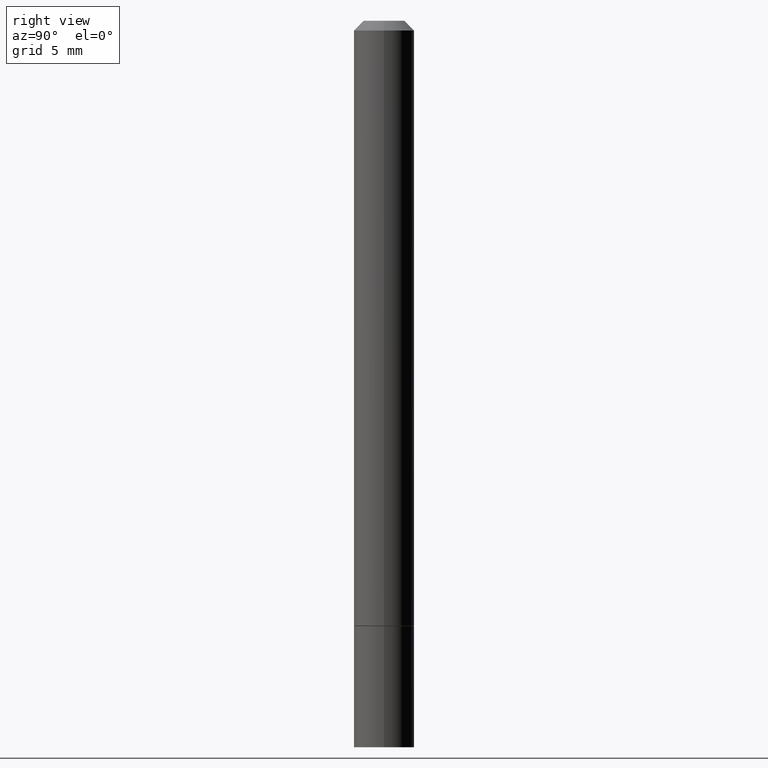
[diagram: clean part render]
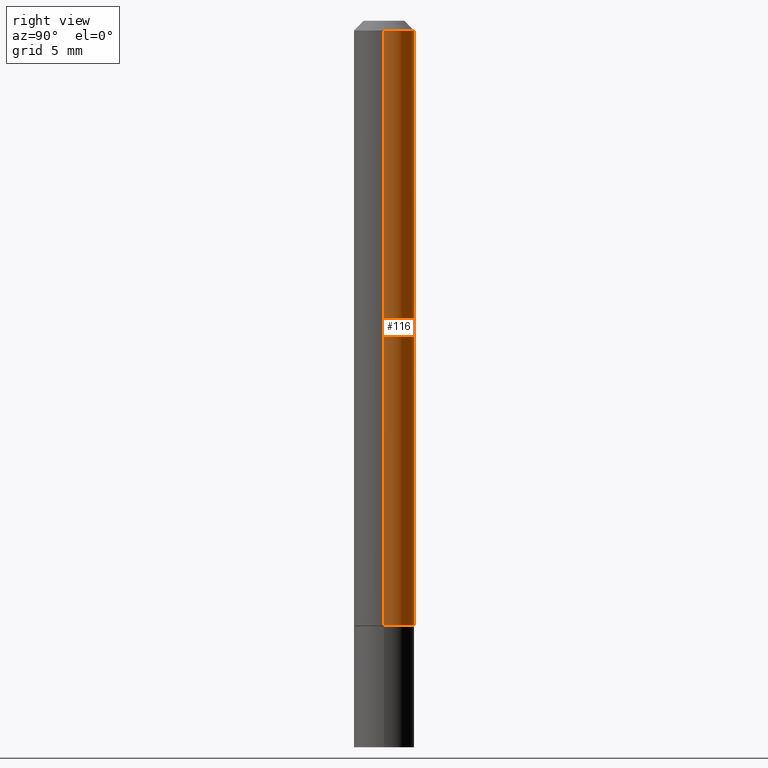
[diagram: same view with one face highlighted and labeled with its STEP entity id]
A machine part, right view. The second image highlights one B-rep face of the part: STEP entity #116.
In plain terms, the highlighted cylindrical surface (edge-blend (fillet) strip) has radius 1.5875 mm, axis along (-0, 0, 1).
Its self-contained STEP definition (entity closure, byte-faithful):
#11 = DIRECTION ( 'NONE',  ( 1.000000000000000000, -6.982962677686267499E-15, 4.876176775795935793E-29 ) ) ;
#30 = CARTESIAN_POINT ( 'NONE',  ( 0.000000000000000000, 0.000000000000000000, 0.000000000000000000 ) ) ;
#31 = EDGE_LOOP ( 'NONE', ( #42, #93, #188, #163 ) ) ;
#32 = CYLINDRICAL_SURFACE ( 'NONE', #211, 0.06250000000000001388 ) ;
#33 = LINE ( 'NONE', #288, #115 ) ;
#40 = DIRECTION ( 'NONE',  ( 1.000000000000000000, -6.982962677686261189E-15, 0.000000000000000000 ) ) ;
#42 = ORIENTED_EDGE ( 'NONE', *, *, #236, .T. ) ;
#44 = DIRECTION ( 'NONE',  ( -2.445468806185136877E-29, 3.491481338843145188E-15, 1.000000000000000000 ) ) ;
#50 = CIRCLE ( 'NONE', #255, 0.06250000000000008327 ) ;
#55 = EDGE_CURVE ( 'NONE', #215, #205, #366, .T. ) ;
#75 = CARTESIAN_POINT ( 'NONE',  ( -0.06250000000000001388, 4.440892098500627148E-16, -3.074334431409317165E-30 ) ) ;
#76 = DIRECTION ( 'NONE',  ( -2.445468806185136877E-29, 3.491481338843145188E-15, 1.000000000000000000 ) ) ;
#93 = ORIENTED_EDGE ( 'NONE', *, *, #55, .T. ) ;
#115 = VECTOR ( 'NONE', #76, 39.37007874015748143 ) ;
#116 = ADVANCED_FACE ( 'NONE', ( #291 ), #32, .T. ) ;
#119 = CARTESIAN_POINT ( 'NONE',  ( -0.06249999999999995143, 3.666055405785282233E-16, -0.02000000000000005246 ) ) ;
#132 = CARTESIAN_POINT ( 'NONE',  ( 0.06249999999999995143, -4.986107516375834292E-16, -0.02000000000000005246 ) ) ;
#139 = EDGE_CURVE ( 'NONE', #144, #305, #33, .T. ) ;
#144 = VERTEX_POINT ( 'NONE', #179 ) ;
#163 = ORIENTED_EDGE ( 'NONE', *, *, #139, .F. ) ;
#174 = CARTESIAN_POINT ( 'NONE',  ( -0.06250000000000008327, -1.771255699645910018E-15, -1.248999999999999888 ) ) ;
#179 = CARTESIAN_POINT ( 'NONE',  ( 0.06250000000000008327, -4.797295359570480345E-15, -1.248999999999999888 ) ) ;
#188 = ORIENTED_EDGE ( 'NONE', *, *, #329, .F. ) ;
#205 = VERTEX_POINT ( 'NONE', #119 ) ;
#211 = AXIS2_PLACEMENT_3D ( 'NONE', #30, #343, #11 ) ;
#215 = VERTEX_POINT ( 'NONE', #174 ) ;
#236 = EDGE_CURVE ( 'NONE', #144, #215, #50, .T. ) ;
#247 = VECTOR ( 'NONE', #44, 39.37007874015748143 ) ;
#250 = CIRCLE ( 'NONE', #293, 0.06249999999999995143 ) ;
#255 = AXIS2_PLACEMENT_3D ( 'NONE', #315, #296, #40 ) ;
#274 = DIRECTION ( 'NONE',  ( 1.000000000000000000, -6.982962677686266711E-15, 0.000000000000000000 ) ) ;
#280 = DIRECTION ( 'NONE',  ( -2.445468806185136597E-29, 3.491481338843145583E-15, 1.000000000000000000 ) ) ;
#288 = CARTESIAN_POINT ( 'NONE',  ( 0.06250000000000001388, -4.364351673553918173E-16, 3.047610484872460571E-30 ) ) ;
#291 = FACE_OUTER_BOUND ( 'NONE', #31, .T. ) ;
#293 = AXIS2_PLACEMENT_3D ( 'NONE', #335, #280, #274 ) ;
#296 = DIRECTION ( 'NONE',  ( -2.445468806185136597E-29, 3.491481338843145583E-15, 1.000000000000000000 ) ) ;
#305 = VERTEX_POINT ( 'NONE', #132 ) ;
#315 = CARTESIAN_POINT ( 'NONE',  ( 3.054390538925235704E-29, -4.360860192215088675E-15, -1.248999999999999888 ) ) ;
#329 = EDGE_CURVE ( 'NONE', #305, #205, #250, .T. ) ;
#335 = CARTESIAN_POINT ( 'NONE',  ( 4.890937612370285420E-31, -6.982962677686308865E-17, -0.02000000000000005246 ) ) ;
#343 = DIRECTION ( 'NONE',  ( -2.445468806185136597E-29, 3.491481338843145583E-15, 1.000000000000000000 ) ) ;
#366 = LINE ( 'NONE', #75, #247 ) ;